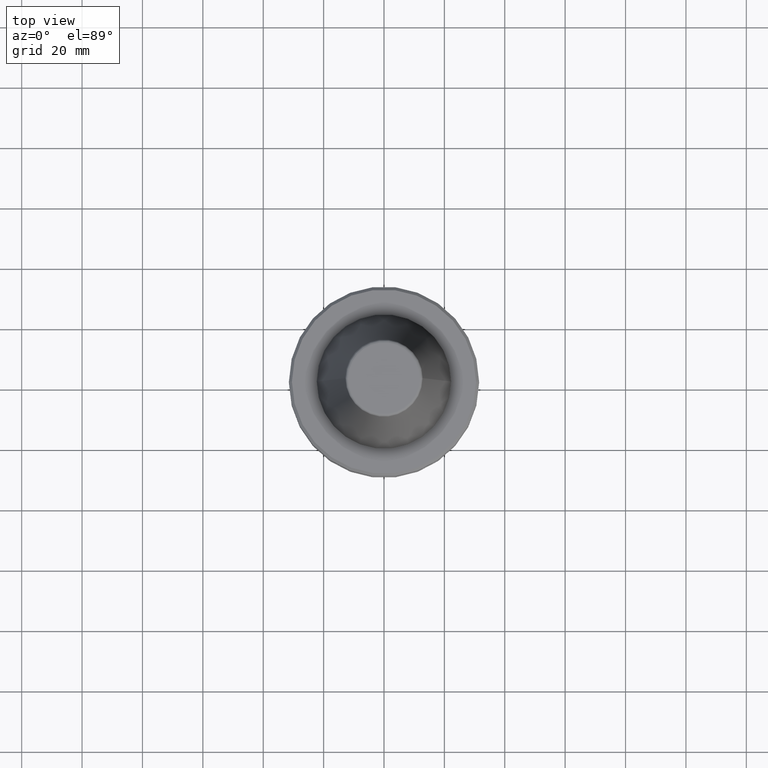
[diagram: clean part render]
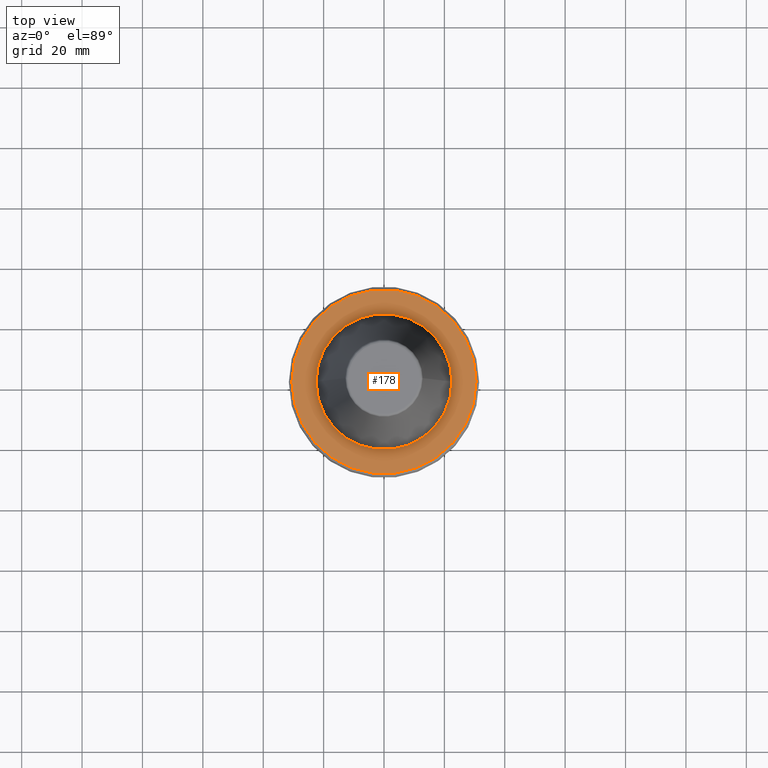
[diagram: same view with one face highlighted and labeled with its STEP entity id]
A machine part, top view. The second image highlights one B-rep face of the part: STEP entity #178.
In plain terms, the highlighted planar face has unit normal (0, 0, -1).
Its self-contained STEP definition (entity closure, byte-faithful):
#3 = CARTESIAN_POINT ( 'NONE',  ( 0.0000000000000000000, 0.0000000000000000000, -1.311286788340082500 ) ) ;
#24 = DIRECTION ( 'NONE',  ( 1.000000000000000000, 0.0000000000000000000, 0.0000000000000000000 ) ) ;
#26 = AXIS2_PLACEMENT_3D ( 'NONE', #902, #256, #746 ) ;
#34 = AXIS2_PLACEMENT_3D ( 'NONE', #779, #740, #704 ) ;
#79 = DIRECTION ( 'NONE',  ( -1.000000000000000000, 0.0000000000000000000, -0.0000000000000000000 ) ) ;
#88 = CIRCLE ( 'NONE', #360, 22.49999999999985400 ) ;
#114 = VERTEX_POINT ( 'NONE', #417 ) ;
#130 = ORIENTED_EDGE ( 'NONE', *, *, #569, .T. ) ;
#139 = FACE_BOUND ( 'NONE', #293, .T. ) ;
#160 = EDGE_CURVE ( 'NONE', #633, #563, #88, .T. ) ;
#178 = ADVANCED_FACE ( 'NONE', ( #139, #507 ), #497, .F. ) ;
#179 = AXIS2_PLACEMENT_3D ( 'NONE', #3, #1032, #959 ) ;
#226 = ORIENTED_EDGE ( 'NONE', *, *, #782, .F. ) ;
#230 = DIRECTION ( 'NONE',  ( 0.0000000000000000000, 0.0000000000000000000, -1.000000000000000000 ) ) ;
#256 = DIRECTION ( 'NONE',  ( -0.0000000000000000000, -0.0000000000000000000, 1.000000000000000000 ) ) ;
#293 = EDGE_LOOP ( 'NONE', ( #582, #226 ) ) ;
#353 = AXIS2_PLACEMENT_3D ( 'NONE', #776, #230, #79 ) ;
#360 = AXIS2_PLACEMENT_3D ( 'NONE', #903, #512, #24 ) ;
#417 = CARTESIAN_POINT ( 'NONE',  ( -30.49999999999986100, 0.0000000000000000000, -1.311286788340082500 ) ) ;
#451 = CARTESIAN_POINT ( 'NONE',  ( 22.49999999999985400, 0.0000000000000000000, -1.311286788340096300 ) ) ;
#456 = CIRCLE ( 'NONE', #26, 22.49999999999985400 ) ;
#497 = PLANE ( 'NONE',  #353 ) ;
#507 = FACE_OUTER_BOUND ( 'NONE', #749, .T. ) ;
#512 = DIRECTION ( 'NONE',  ( -0.0000000000000000000, -0.0000000000000000000, 1.000000000000000000 ) ) ;
#528 = EDGE_CURVE ( 'NONE', #1039, #114, #962, .T. ) ;
#534 = ORIENTED_EDGE ( 'NONE', *, *, #528, .T. ) ;
#563 = VERTEX_POINT ( 'NONE', #786 ) ;
#569 = EDGE_CURVE ( 'NONE', #114, #1039, #941, .T. ) ;
#582 = ORIENTED_EDGE ( 'NONE', *, *, #160, .F. ) ;
#633 = VERTEX_POINT ( 'NONE', #451 ) ;
#704 = DIRECTION ( 'NONE',  ( 1.000000000000000000, 0.0000000000000000000, 0.0000000000000000000 ) ) ;
#740 = DIRECTION ( 'NONE',  ( -0.0000000000000000000, -0.0000000000000000000, 1.000000000000000000 ) ) ;
#746 = DIRECTION ( 'NONE',  ( 1.000000000000000000, 0.0000000000000000000, 0.0000000000000000000 ) ) ;
#749 = EDGE_LOOP ( 'NONE', ( #130, #534 ) ) ;
#776 = CARTESIAN_POINT ( 'NONE',  ( 0.0000000000000000000, 30.49999999999986100, -1.311286788340082500 ) ) ;
#779 = CARTESIAN_POINT ( 'NONE',  ( 0.0000000000000000000, 0.0000000000000000000, -1.311286788340082500 ) ) ;
#782 = EDGE_CURVE ( 'NONE', #563, #633, #456, .T. ) ;
#786 = CARTESIAN_POINT ( 'NONE',  ( -22.49999999999985400, 2.755455298081526600E-015, -1.311286788340096300 ) ) ;
#902 = CARTESIAN_POINT ( 'NONE',  ( 0.0000000000000000000, 0.0000000000000000000, -1.311286788340082500 ) ) ;
#903 = CARTESIAN_POINT ( 'NONE',  ( 0.0000000000000000000, 0.0000000000000000000, -1.311286788340082500 ) ) ;
#941 = CIRCLE ( 'NONE', #34, 30.49999999999986100 ) ;
#959 = DIRECTION ( 'NONE',  ( 1.000000000000000000, 0.0000000000000000000, 0.0000000000000000000 ) ) ;
#962 = CIRCLE ( 'NONE', #179, 30.49999999999986100 ) ;
#1003 = CARTESIAN_POINT ( 'NONE',  ( 30.49999999999986100, 3.796405077356777800E-015, -1.311286788340082500 ) ) ;
#1032 = DIRECTION ( 'NONE',  ( -0.0000000000000000000, -0.0000000000000000000, 1.000000000000000000 ) ) ;
#1039 = VERTEX_POINT ( 'NONE', #1003 ) ;